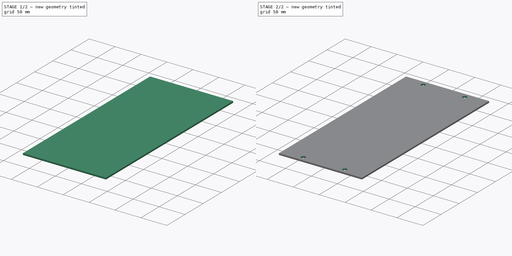
[diagram: build sequence overview — one tinted view per stage of 2, left to right]
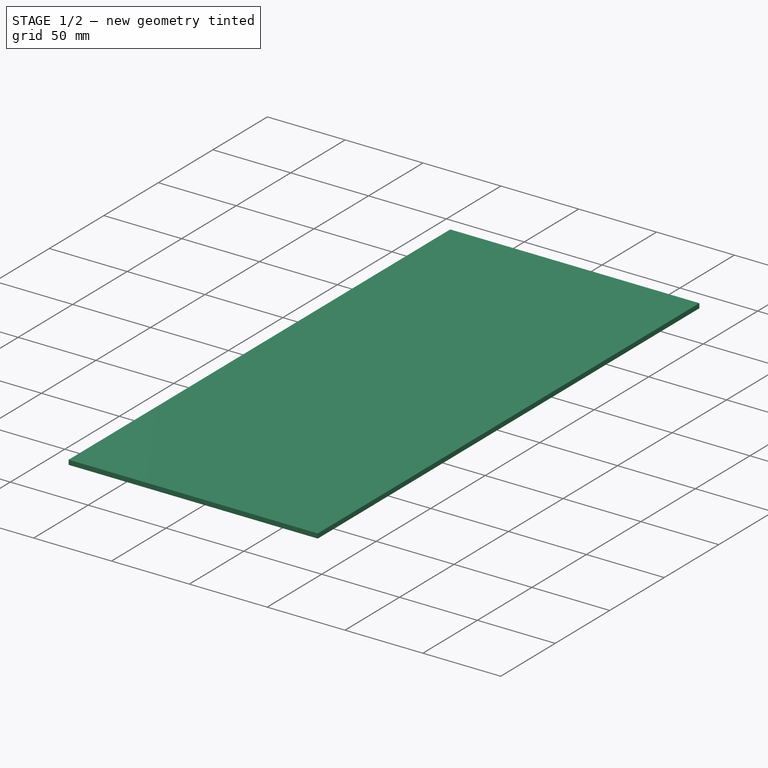
[diagram: stage 1 of 2 — iso view after this stage's code; geometry added in this stage tinted green]
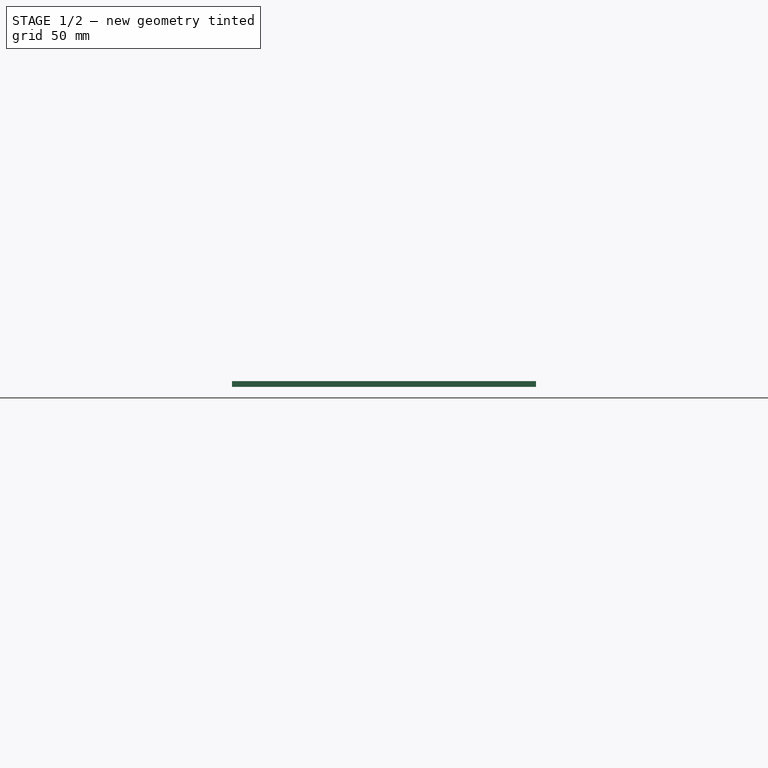
[diagram: stage 1 of 2 — front view after this stage's code; geometry added in this stage tinted green]
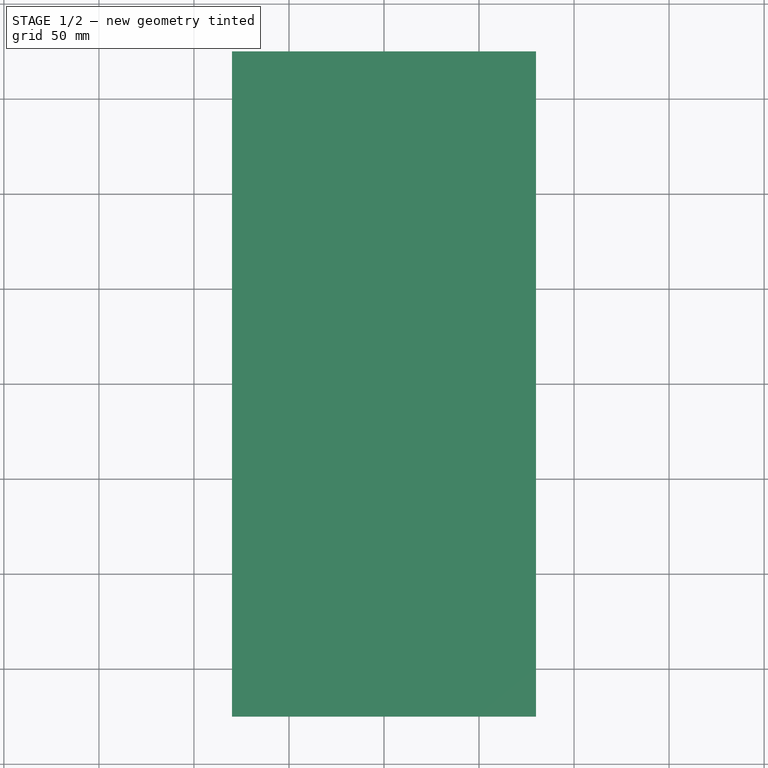
[diagram: stage 1 of 2 — top view after this stage's code; geometry added in this stage tinted green]
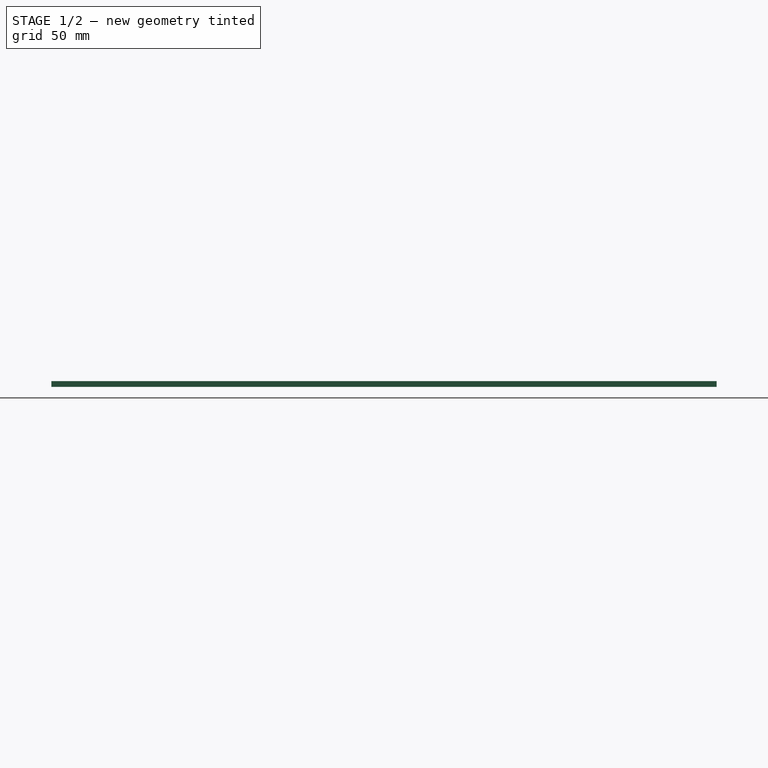
[diagram: stage 1 of 2 — right view after this stage's code; geometry added in this stage tinted green]
FCSTD DOCUMENT  (FreeCAD 0.19R24291 (Git))
Label: small_electronics_tray
License: All rights reserved
LicenseURL: http://en.wikipedia.org/wiki/All_rights_reserved
objects: Sketcher::SketchObject×2, PartDesign::Plane×1, PartDesign::Pad×1, PartDesign::Pocket×1, PartDesign::Body×1
note: 8 computed .brp shape members not serialized (recipe doc carries the construction recipe); baked Part::Feature solids carry a one-line shape summary decoded from their .brp

FEATURE [Sketcher::SketchObject] Sketch  label="Panel S"
  FullyConstrained = true
  MapMode = 5
  Support = -> [XY_Plane]
  sketch-geometry (4):
    g0: LineSegment StartX=-80 StartY=175 StartZ=0 EndX=80 EndY=175 EndZ=0
    g1: LineSegment StartX=80 StartY=175 StartZ=0 EndX=80 EndY=-175 EndZ=0
    g2: LineSegment StartX=80 StartY=-175 StartZ=0 EndX=-80 EndY=-175 EndZ=0
    g3: LineSegment StartX=-80 StartY=-175 StartZ=0 EndX=-80 EndY=175 EndZ=0
  constraints (10):
    c: Coincident(g0,g1)
    c: Coincident(g1,g2)
    c: Coincident(g2,g3)
    c: Coincident(g3,g0)
    c: Horizontal(g2)
    c: Vertical(g3)
    c: Symmetric(g0,g0,g-2)
    c: Symmetric(g0,g1,g-1)
    c: DistanceX(g0,g0) = 160
    c: DistanceY(g1,g1) = 350
FEATURE [PartDesign::Plane] DatumPlane  label="Panel Surface"
  AttachmentOffset = pos=(0,0,3) rot=(0,0,1;0rad)
  Length = 207.329
  MapMode = 5
  Placement = pos=(0,0,3) rot=(0,0,1;0rad)
  ResizeMode = 0
  Support = -> [XY_Plane]
  Width = 397.329
FEATURE [PartDesign::Pad] Pad  label="Panel"
  Direction = (1,1,1)
  Length = 3
  Length2 = 100
  Profile = -> Sketch
  Type = 3
  UpToFace = -> DatumPlane
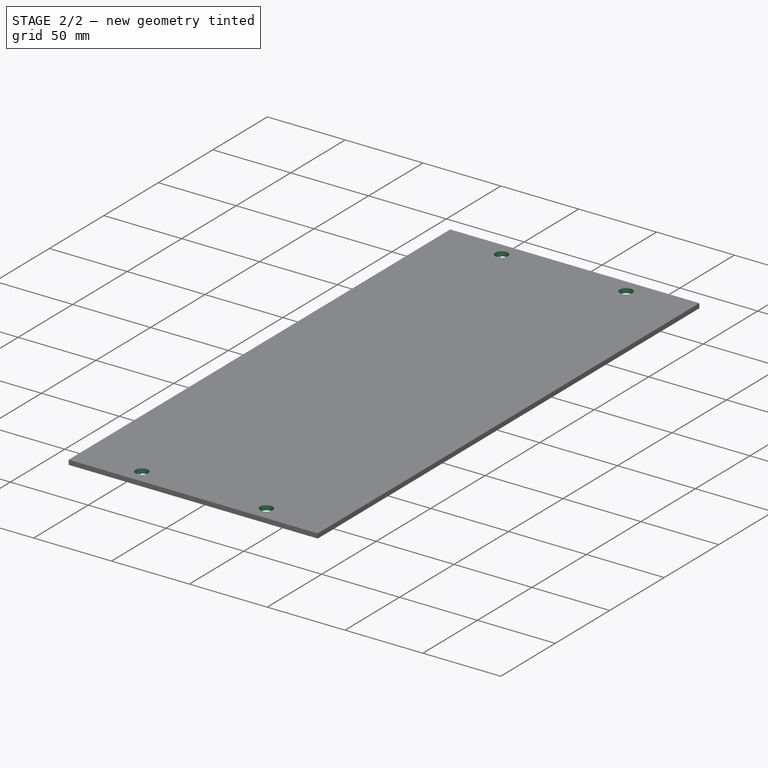
[diagram: stage 2 of 2 — iso view after this stage's code; geometry added in this stage tinted green]
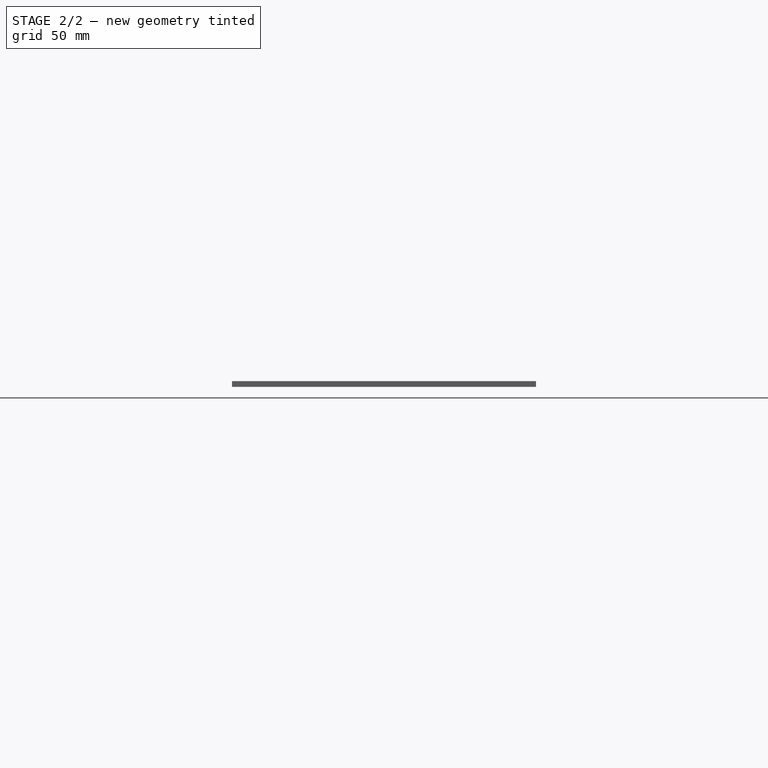
[diagram: stage 2 of 2 — front view after this stage's code; geometry added in this stage tinted green]
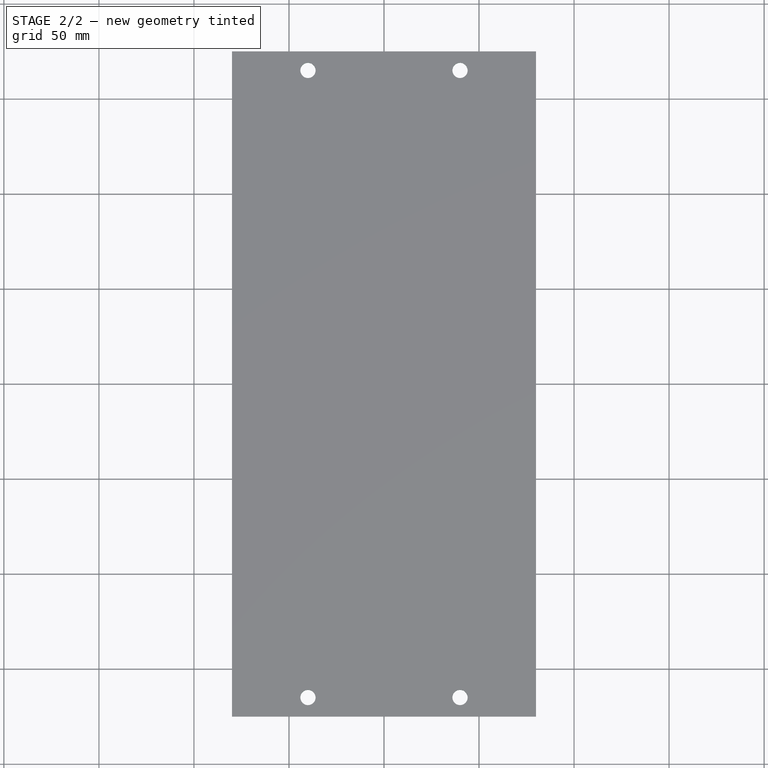
[diagram: stage 2 of 2 — top view after this stage's code; geometry added in this stage tinted green]
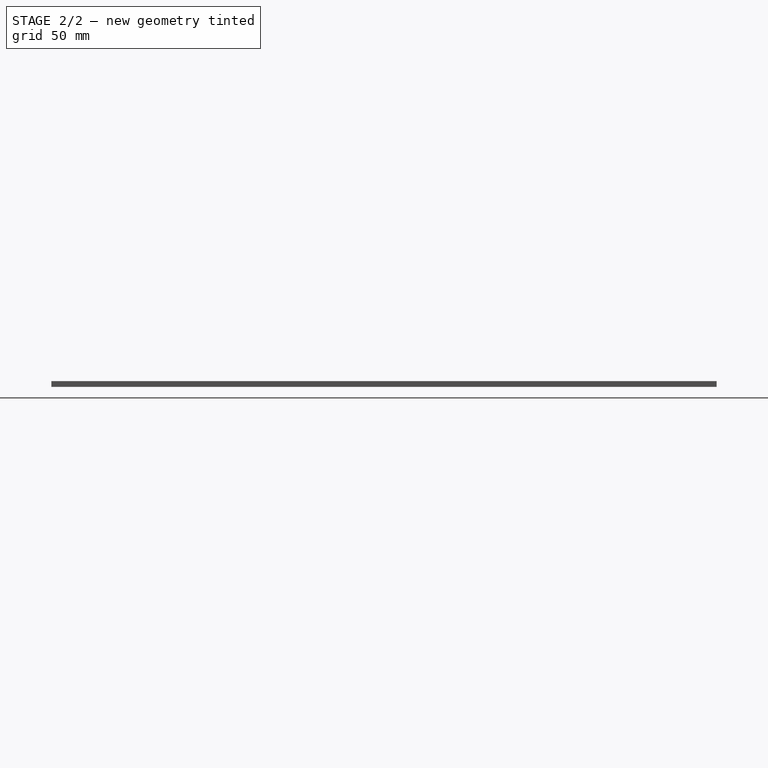
[diagram: stage 2 of 2 — right view after this stage's code; geometry added in this stage tinted green]
FEATURE [Sketcher::SketchObject] Sketch001  label="Mounting Holes S"
  FullyConstrained = true
  MapMode = 5
  Placement = pos=(0,0,3) rot=(0,0,1;0rad)
  Support = -> [DatumPlane]
  sketch-geometry (8):
    g0: Circle CenterX=-40 CenterY=165 CenterZ=0 NormalX=0 NormalY=0 NormalZ=1 AngleXU=0 Radius=4
    g1: Circle CenterX=40 CenterY=165 CenterZ=0 NormalX=0 NormalY=0 NormalZ=1 AngleXU=0 Radius=4
    g2: Circle CenterX=-40 CenterY=-165 CenterZ=0 NormalX=0 NormalY=0 NormalZ=1 AngleXU=0 Radius=4
    g3: Circle CenterX=40 CenterY=-165 CenterZ=0 NormalX=0 NormalY=0 NormalZ=1 AngleXU=0 Radius=4
    g4: LineSegment StartX=-40 StartY=165 StartZ=0 EndX=40 EndY=165 EndZ=0
    g5: LineSegment StartX=-40 StartY=-165 StartZ=0 EndX=40 EndY=-165 EndZ=0
    g6: LineSegment StartX=-40 StartY=165 StartZ=0 EndX=-40 EndY=-165 EndZ=0
    g7: LineSegment StartX=40 StartY=165 StartZ=0 EndX=40 EndY=-165 EndZ=0
  constraints (18):
    c: Equal(g0,g1)
    c: Equal(g1,g2)
    c: Equal(g2,g3)
    c: Horizontal(g5)
    c: Coincident(g4,g0)
    c: Coincident(g1,g4)
    c: Coincident(g5,g3)
    c: Coincident(g5,g2)
    c: Coincident(g6,g0)
    c: Coincident(g6,g2)
    c: Coincident(g7,g1)
    c: Coincident(g7,g3)
    c: Vertical(g6)
    c: Symmetric(g0,g1,g-2)
    c: Symmetric(g1,g3,g-1)
    c: DistanceX(g4,g4) = 80
    c: DistanceY(g3,g1) = 330
    c: Diameter(g3) = 8
FEATURE [PartDesign::Pocket] Pocket  label="Mounting Holes"
  BaseFeature = -> Pad
  Length = 0
  Length2 = 100
  Profile = -> Sketch001
  Type = 3
  UpToFace = -> XY_Plane
FEATURE [PartDesign::Body] Body  label="Small Electronics Tray"
  Group = -> [DatumPlane,Sketch,Pad,Sketch001,Pocket]
  Origin = -> Origin
  Tip = -> Pocket
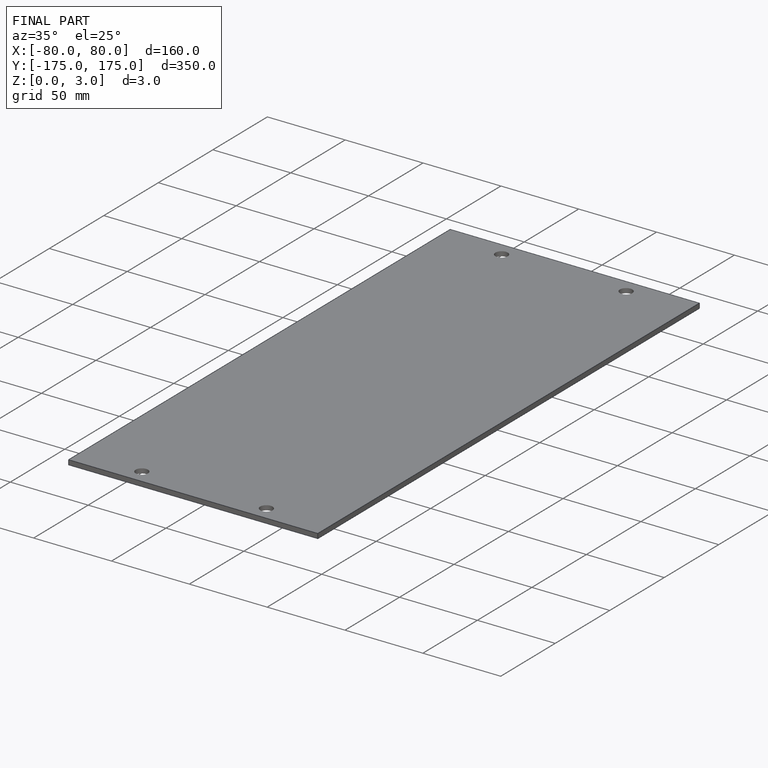
[diagram: finished part — iso view with bounding-box wireframe]
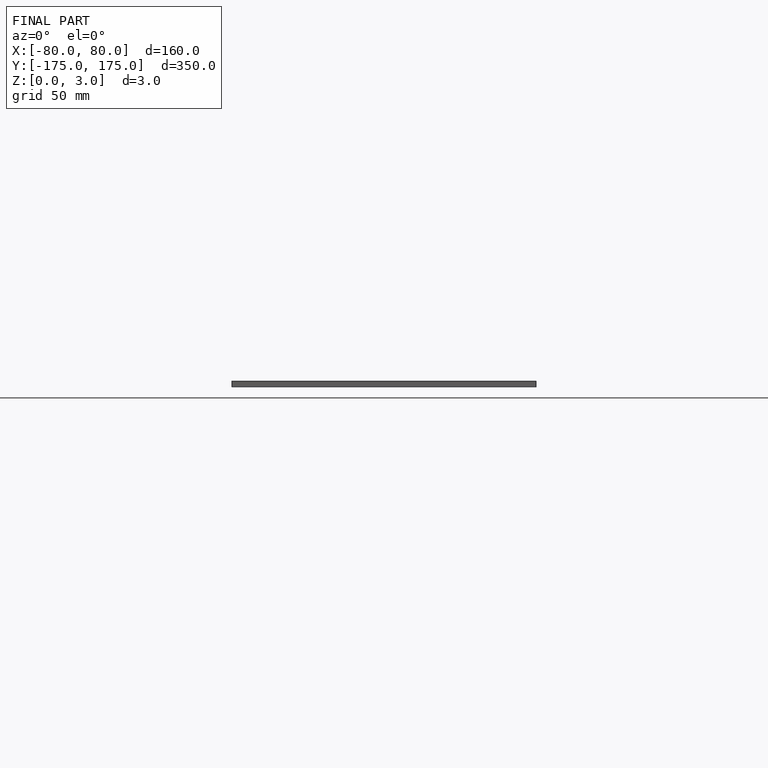
[diagram: finished part — front view with bounding-box wireframe]
